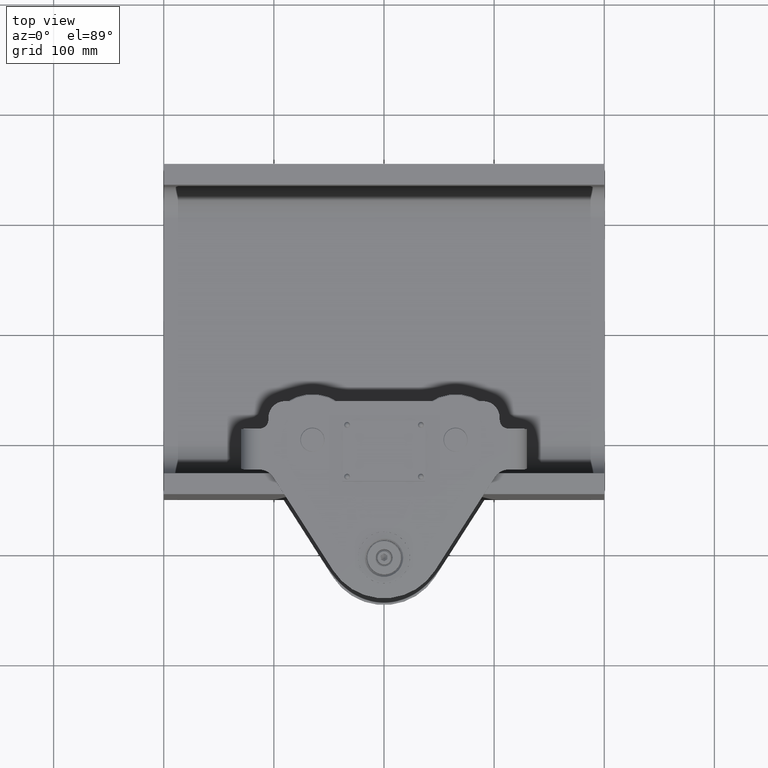
[diagram: clean part render]
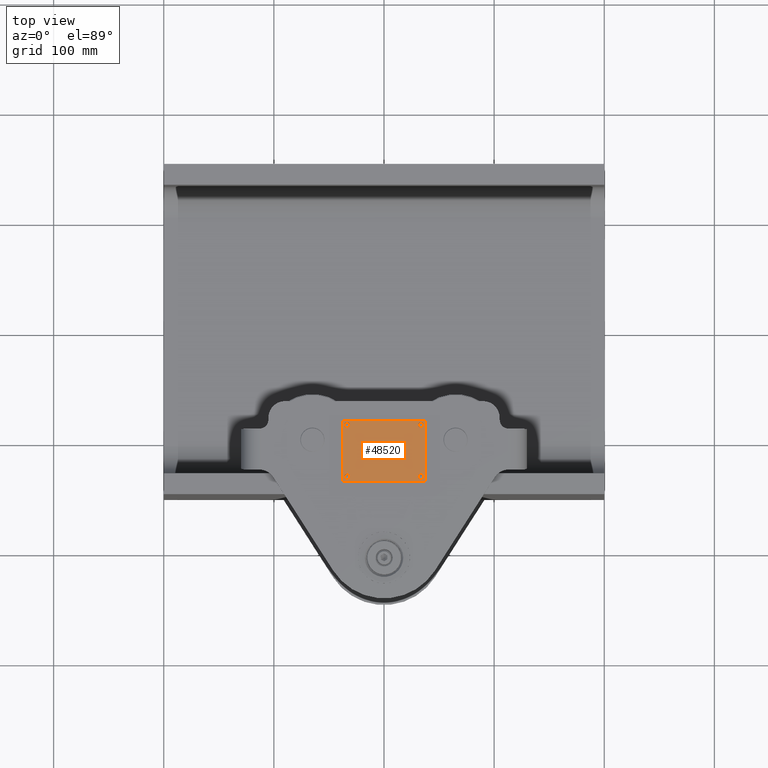
[diagram: same view with one face highlighted and labeled with its STEP entity id]
A machine part, top view. The second image highlights one B-rep face of the part: STEP entity #48520.
In plain terms, the highlighted planar face has unit normal (0, 0, -1).
Its self-contained STEP definition (entity closure, byte-faithful):
#260 = CARTESIAN_POINT ( 'NONE',  ( 37.50000000000000700, -138.4999999999999100, 173.4999999999998600 ) ) ;
#679 = CARTESIAN_POINT ( 'NONE',  ( -37.50000000000000700, -83.49999999999991500, 173.4999999999998600 ) ) ;
#1231 = DIRECTION ( 'NONE',  ( 0.0000000000000000000, 0.0000000000000000000, 1.000000000000000000 ) ) ;
#1262 = DIRECTION ( 'NONE',  ( 1.000000000000000000, 0.0000000000000000000, 0.0000000000000000000 ) ) ;
#1451 = CARTESIAN_POINT ( 'NONE',  ( 35.25000000000000000, -134.4999999999998900, 173.4999999999998600 ) ) ;
#1636 = ORIENTED_EDGE ( 'NONE', *, *, #12975, .F. ) ;
#2207 = VERTEX_POINT ( 'NONE', #23664 ) ;
#2241 = VERTEX_POINT ( 'NONE', #48697 ) ;
#2452 = DIRECTION ( 'NONE',  ( 1.000000000000000000, 0.0000000000000000000, 0.0000000000000000000 ) ) ;
#2631 = EDGE_CURVE ( 'NONE', #13826, #2207, #47488, .T. ) ;
#2953 = AXIS2_PLACEMENT_3D ( 'NONE', #14663, #43460, #2452 ) ;
#3116 = EDGE_LOOP ( 'NONE', ( #41807, #28585 ) ) ;
#3197 = FACE_BOUND ( 'NONE', #3116, .T. ) ;
#3234 = VECTOR ( 'NONE', #49217, 1000.000000000000000 ) ;
#3280 = CIRCLE ( 'NONE', #21382, 1.749999999999994700 ) ;
#3359 = DIRECTION ( 'NONE',  ( 1.000000000000000000, 0.0000000000000000000, 0.0000000000000000000 ) ) ;
#3414 = VERTEX_POINT ( 'NONE', #20123 ) ;
#3773 = CARTESIAN_POINT ( 'NONE',  ( -33.50000000000000000, -134.4999999999998900, 173.4999999999998600 ) ) ;
#3900 = CARTESIAN_POINT ( 'NONE',  ( -35.25000000000000000, -87.49999999999990100, 173.4999999999998600 ) ) ;
#5201 = CARTESIAN_POINT ( 'NONE',  ( -33.50000000000000000, -87.49999999999990100, 173.4999999999998600 ) ) ;
#5341 = EDGE_CURVE ( 'NONE', #2241, #32475, #23116, .T. ) ;
#5350 = DIRECTION ( 'NONE',  ( -1.000000000000000000, -0.0000000000000000000, -0.0000000000000000000 ) ) ;
#5998 = EDGE_CURVE ( 'NONE', #26695, #34944, #24315, .T. ) ;
#6950 = CARTESIAN_POINT ( 'NONE',  ( -31.75000000000000000, -87.49999999999990100, 173.4999999999998600 ) ) ;
#9461 = CARTESIAN_POINT ( 'NONE',  ( -33.50000000000000000, -87.49999999999990100, 173.4999999999998600 ) ) ;
#9538 = DIRECTION ( 'NONE',  ( 0.0000000000000000000, 0.0000000000000000000, 1.000000000000000000 ) ) ;
#9584 = ORIENTED_EDGE ( 'NONE', *, *, #21372, .T. ) ;
#9679 = VECTOR ( 'NONE', #5350, 1000.000000000000000 ) ;
#10256 = AXIS2_PLACEMENT_3D ( 'NONE', #17747, #9538, #1262 ) ;
#10273 = LINE ( 'NONE', #679, #9679 ) ;
#10615 = CARTESIAN_POINT ( 'NONE',  ( -37.50000000000000700, -138.4999999999999100, 173.4999999999998600 ) ) ;
#11273 = DIRECTION ( 'NONE',  ( -1.000000000000000000, 0.0000000000000000000, -0.0000000000000000000 ) ) ;
#11823 = CARTESIAN_POINT ( 'NONE',  ( -37.50000000000000700, -83.49999999999991500, 173.4999999999998600 ) ) ;
#12074 = EDGE_CURVE ( 'NONE', #17616, #29158, #46748, .T. ) ;
#12103 = CARTESIAN_POINT ( 'NONE',  ( 31.75000000000000700, -134.4999999999998900, 173.4999999999998600 ) ) ;
#12678 = CARTESIAN_POINT ( 'NONE',  ( -37.50000000000000700, -138.4999999999999100, 173.4999999999998600 ) ) ;
#12975 = EDGE_CURVE ( 'NONE', #2207, #13826, #51013, .T. ) ;
#13114 = VERTEX_POINT ( 'NONE', #31907 ) ;
#13565 = DIRECTION ( 'NONE',  ( 1.000000000000000000, 0.0000000000000000000, 0.0000000000000000000 ) ) ;
#13826 = VERTEX_POINT ( 'NONE', #22788 ) ;
#14663 = CARTESIAN_POINT ( 'NONE',  ( 33.50000000000000000, -87.49999999999990100, 173.4999999999998600 ) ) ;
#14719 = VERTEX_POINT ( 'NONE', #16790 ) ;
#14761 = VECTOR ( 'NONE', #22267, 1000.000000000000000 ) ;
#15538 = EDGE_CURVE ( 'NONE', #29158, #17616, #36185, .T. ) ;
#15732 = CARTESIAN_POINT ( 'NONE',  ( 33.50000000000000000, -134.4999999999998900, 173.4999999999998600 ) ) ;
#16754 = EDGE_CURVE ( 'NONE', #3414, #2241, #10273, .T. ) ;
#16790 = CARTESIAN_POINT ( 'NONE',  ( 37.50000000000000700, -138.4999999999999100, 173.4999999999998600 ) ) ;
#16995 = DIRECTION ( 'NONE',  ( 0.0000000000000000000, 0.0000000000000000000, 1.000000000000000000 ) ) ;
#17616 = VERTEX_POINT ( 'NONE', #6950 ) ;
#17747 = CARTESIAN_POINT ( 'NONE',  ( -33.50000000000000000, -134.4999999999998900, 173.4999999999998600 ) ) ;
#17955 = AXIS2_PLACEMENT_3D ( 'NONE', #5201, #1231, #26044 ) ;
#19256 = DIRECTION ( 'NONE',  ( 1.000000000000000000, 0.0000000000000000000, 0.0000000000000000000 ) ) ;
#19874 = DIRECTION ( 'NONE',  ( 1.000000000000000000, 0.0000000000000000000, 0.0000000000000000000 ) ) ;
#20123 = CARTESIAN_POINT ( 'NONE',  ( 37.50000000000000700, -83.49999999999991500, 173.4999999999998600 ) ) ;
#20374 = ORIENTED_EDGE ( 'NONE', *, *, #27552, .T. ) ;
#21109 = CARTESIAN_POINT ( 'NONE',  ( 31.75000000000000700, -87.49999999999990100, 173.4999999999998600 ) ) ;
#21372 = EDGE_CURVE ( 'NONE', #14719, #3414, #34761, .T. ) ;
#21382 = AXIS2_PLACEMENT_3D ( 'NONE', #15732, #40233, #3359 ) ;
#22267 = DIRECTION ( 'NONE',  ( -0.0000000000000000000, -1.000000000000000000, -0.0000000000000000000 ) ) ;
#22788 = CARTESIAN_POINT ( 'NONE',  ( -31.75000000000000000, -134.4999999999998900, 173.4999999999998600 ) ) ;
#23116 = LINE ( 'NONE', #10615, #14761 ) ;
#23664 = CARTESIAN_POINT ( 'NONE',  ( -35.25000000000000000, -134.4999999999998900, 173.4999999999998600 ) ) ;
#24315 = CIRCLE ( 'NONE', #44111, 1.749999999999994700 ) ;
#24332 = EDGE_CURVE ( 'NONE', #13114, #27512, #31728, .T. ) ;
#24407 = FACE_OUTER_BOUND ( 'NONE', #41459, .T. ) ;
#26044 = DIRECTION ( 'NONE',  ( 1.000000000000000000, 0.0000000000000000000, 0.0000000000000000000 ) ) ;
#26695 = VERTEX_POINT ( 'NONE', #1451 ) ;
#26756 = DIRECTION ( 'NONE',  ( 1.000000000000000000, 0.0000000000000000000, 0.0000000000000000000 ) ) ;
#26990 = FACE_BOUND ( 'NONE', #34445, .T. ) ;
#27512 = VERTEX_POINT ( 'NONE', #21109 ) ;
#27552 = EDGE_CURVE ( 'NONE', #32475, #14719, #45200, .T. ) ;
#27975 = ORIENTED_EDGE ( 'NONE', *, *, #12074, .F. ) ;
#28291 = ORIENTED_EDGE ( 'NONE', *, *, #15538, .F. ) ;
#28585 = ORIENTED_EDGE ( 'NONE', *, *, #46576, .F. ) ;
#29158 = VERTEX_POINT ( 'NONE', #3900 ) ;
#29658 = AXIS2_PLACEMENT_3D ( 'NONE', #11823, #32151, #11273 ) ;
#30015 = ORIENTED_EDGE ( 'NONE', *, *, #16754, .T. ) ;
#31728 = CIRCLE ( 'NONE', #33330, 1.749999999999994700 ) ;
#31907 = CARTESIAN_POINT ( 'NONE',  ( 35.25000000000000000, -87.49999999999990100, 173.4999999999998600 ) ) ;
#32151 = DIRECTION ( 'NONE',  ( 0.0000000000000000000, 0.0000000000000000000, -1.000000000000000000 ) ) ;
#32423 = CARTESIAN_POINT ( 'NONE',  ( 33.50000000000000000, -87.49999999999990100, 173.4999999999998600 ) ) ;
#32475 = VERTEX_POINT ( 'NONE', #46466 ) ;
#33330 = AXIS2_PLACEMENT_3D ( 'NONE', #32423, #40354, #19256 ) ;
#33613 = CIRCLE ( 'NONE', #2953, 1.749999999999994700 ) ;
#33938 = ORIENTED_EDGE ( 'NONE', *, *, #5998, .F. ) ;
#34445 = EDGE_LOOP ( 'NONE', ( #27975, #28291 ) ) ;
#34761 = LINE ( 'NONE', #260, #3234 ) ;
#34857 = VECTOR ( 'NONE', #41519, 1000.000000000000000 ) ;
#34944 = VERTEX_POINT ( 'NONE', #12103 ) ;
#35370 = FACE_BOUND ( 'NONE', #50365, .T. ) ;
#36185 = CIRCLE ( 'NONE', #17955, 1.750000000000001600 ) ;
#37044 = EDGE_CURVE ( 'NONE', #34944, #26695, #3280, .T. ) ;
#37928 = FACE_BOUND ( 'NONE', #38639, .T. ) ;
#38639 = EDGE_LOOP ( 'NONE', ( #33938, #42329 ) ) ;
#38838 = ORIENTED_EDGE ( 'NONE', *, *, #2631, .F. ) ;
#38848 = ORIENTED_EDGE ( 'NONE', *, *, #5341, .T. ) ;
#38999 = CARTESIAN_POINT ( 'NONE',  ( 33.50000000000000000, -134.4999999999998900, 173.4999999999998600 ) ) ;
#40233 = DIRECTION ( 'NONE',  ( 0.0000000000000000000, 0.0000000000000000000, 1.000000000000000000 ) ) ;
#40354 = DIRECTION ( 'NONE',  ( 0.0000000000000000000, 0.0000000000000000000, 1.000000000000000000 ) ) ;
#40641 = DIRECTION ( 'NONE',  ( 0.0000000000000000000, 0.0000000000000000000, 1.000000000000000000 ) ) ;
#41459 = EDGE_LOOP ( 'NONE', ( #38848, #20374, #9584, #30015 ) ) ;
#41519 = DIRECTION ( 'NONE',  ( 1.000000000000000000, 0.0000000000000000000, 0.0000000000000000000 ) ) ;
#41807 = ORIENTED_EDGE ( 'NONE', *, *, #24332, .F. ) ;
#42329 = ORIENTED_EDGE ( 'NONE', *, *, #37044, .F. ) ;
#43146 = DIRECTION ( 'NONE',  ( 0.0000000000000000000, 0.0000000000000000000, 1.000000000000000000 ) ) ;
#43311 = AXIS2_PLACEMENT_3D ( 'NONE', #9461, #16995, #13565 ) ;
#43460 = DIRECTION ( 'NONE',  ( 0.0000000000000000000, 0.0000000000000000000, 1.000000000000000000 ) ) ;
#44111 = AXIS2_PLACEMENT_3D ( 'NONE', #38999, #43146, #26756 ) ;
#45200 = LINE ( 'NONE', #12678, #34857 ) ;
#45927 = AXIS2_PLACEMENT_3D ( 'NONE', #3773, #40641, #19874 ) ;
#46466 = CARTESIAN_POINT ( 'NONE',  ( -37.50000000000000700, -138.4999999999999100, 173.4999999999998600 ) ) ;
#46576 = EDGE_CURVE ( 'NONE', #27512, #13114, #33613, .T. ) ;
#46748 = CIRCLE ( 'NONE', #43311, 1.750000000000001600 ) ;
#47488 = CIRCLE ( 'NONE', #45927, 1.750000000000001600 ) ;
#47852 = PLANE ( 'NONE',  #29658 ) ;
#48520 = ADVANCED_FACE ( 'NONE', ( #37928, #35370, #3197, #26990, #24407 ), #47852, .F. ) ;
#48697 = CARTESIAN_POINT ( 'NONE',  ( -37.50000000000000700, -83.49999999999991500, 173.4999999999998600 ) ) ;
#49217 = DIRECTION ( 'NONE',  ( 0.0000000000000000000, 1.000000000000000000, 0.0000000000000000000 ) ) ;
#50365 = EDGE_LOOP ( 'NONE', ( #38838, #1636 ) ) ;
#51013 = CIRCLE ( 'NONE', #10256, 1.750000000000001600 ) ;